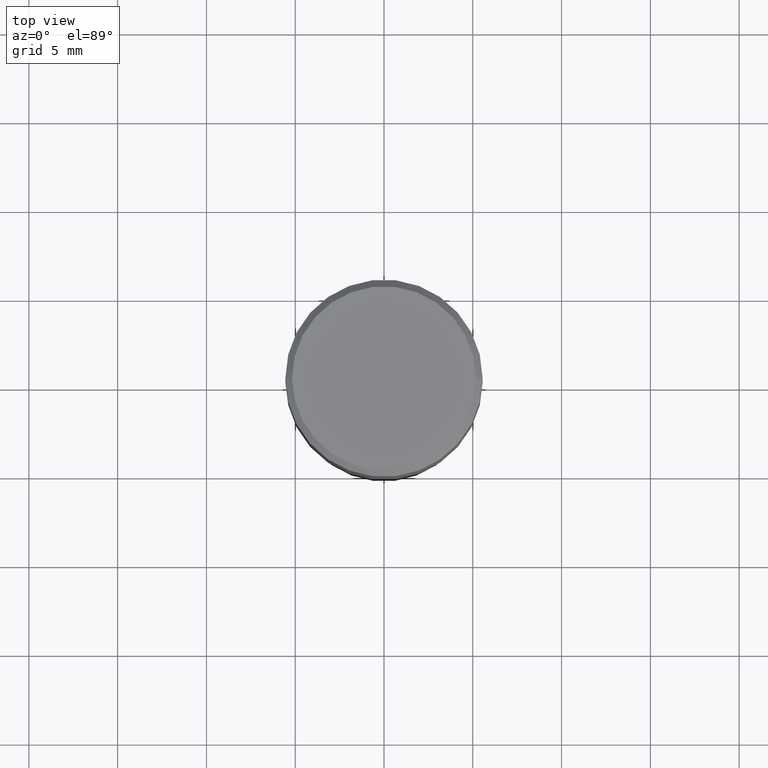
[diagram: clean part render]
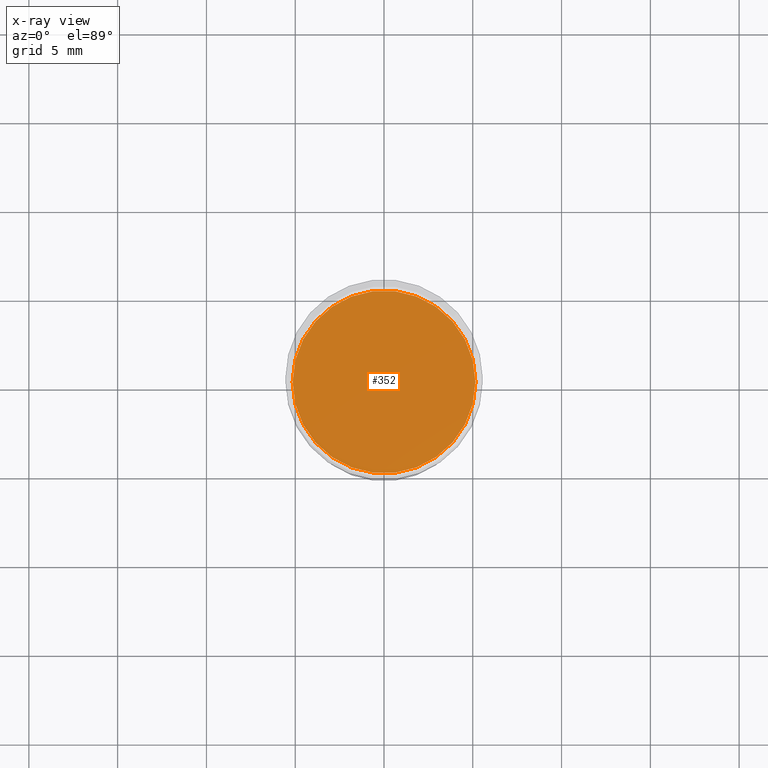
[diagram: x-ray — body ghosted, one internal face saturated and labeled with its STEP entity id]
A machine part, top view, then the same camera in x-ray: the body is ghosted and one INTERNAL B-rep face — a face not visible from any outside direction — is saturated and labeled: STEP entity #352.
In plain terms, the highlighted planar face has unit normal (-0, 0, 1).
Its self-contained STEP definition (entity closure, byte-faithful):
#1 = CARTESIAN_POINT ( 'NONE',  ( -0.2026000000000000023, -3.035318595974993861E-16, -0.5000000000000001110 ) ) ;
#47 = PLANE ( 'NONE',  #441 ) ;
#67 = CARTESIAN_POINT ( 'NONE',  ( 1.222734403092568719E-29, -1.745740669421573186E-15, -0.5000000000000001110 ) ) ;
#73 = CARTESIAN_POINT ( 'NONE',  ( 1.222734403092568719E-29, -1.745740669421573186E-15, -0.5000000000000001110 ) ) ;
#81 = CARTESIAN_POINT ( 'NONE',  ( 1.222734403092568719E-29, -1.745740669421573186E-15, -0.5000000000000001110 ) ) ;
#104 = EDGE_CURVE ( 'NONE', #368, #203, #231, .T. ) ;
#106 = CIRCLE ( 'NONE', #157, 0.2026000000000000023 ) ;
#119 = FACE_OUTER_BOUND ( 'NONE', #307, .T. ) ;
#152 = DIRECTION ( 'NONE',  ( 1.000000000000000000, -6.982962677686268288E-15, 0.000000000000000000 ) ) ;
#157 = AXIS2_PLACEMENT_3D ( 'NONE', #67, #303, #152 ) ;
#194 = DIRECTION ( 'NONE',  ( 1.000000000000000000, -6.982962677686265922E-15, 4.876176775795935793E-29 ) ) ;
#203 = VERTEX_POINT ( 'NONE', #1 ) ;
#216 = EDGE_CURVE ( 'NONE', #203, #368, #106, .T. ) ;
#231 = CIRCLE ( 'NONE', #251, 0.2026000000000000023 ) ;
#251 = AXIS2_PLACEMENT_3D ( 'NONE', #73, #394, #291 ) ;
#255 = ORIENTED_EDGE ( 'NONE', *, *, #216, .F. ) ;
#291 = DIRECTION ( 'NONE',  ( 1.000000000000000000, -6.982962677686268288E-15, 0.000000000000000000 ) ) ;
#303 = DIRECTION ( 'NONE',  ( -2.445468806185136597E-29, 3.491481338843145583E-15, 1.000000000000000000 ) ) ;
#304 = CARTESIAN_POINT ( 'NONE',  ( 0.2026000000000000023, -3.160488907920811151E-15, -0.5000000000000001110 ) ) ;
#307 = EDGE_LOOP ( 'NONE', ( #370, #255 ) ) ;
#352 = ADVANCED_FACE ( 'NONE', ( #119 ), #47, .F. ) ;
#368 = VERTEX_POINT ( 'NONE', #304 ) ;
#370 = ORIENTED_EDGE ( 'NONE', *, *, #104, .F. ) ;
#376 = DIRECTION ( 'NONE',  ( -2.438088387897960049E-29, 3.491481338843145188E-15, 1.000000000000000000 ) ) ;
#394 = DIRECTION ( 'NONE',  ( -2.445468806185136597E-29, 3.491481338843145583E-15, 1.000000000000000000 ) ) ;
#441 = AXIS2_PLACEMENT_3D ( 'NONE', #81, #376, #194 ) ;